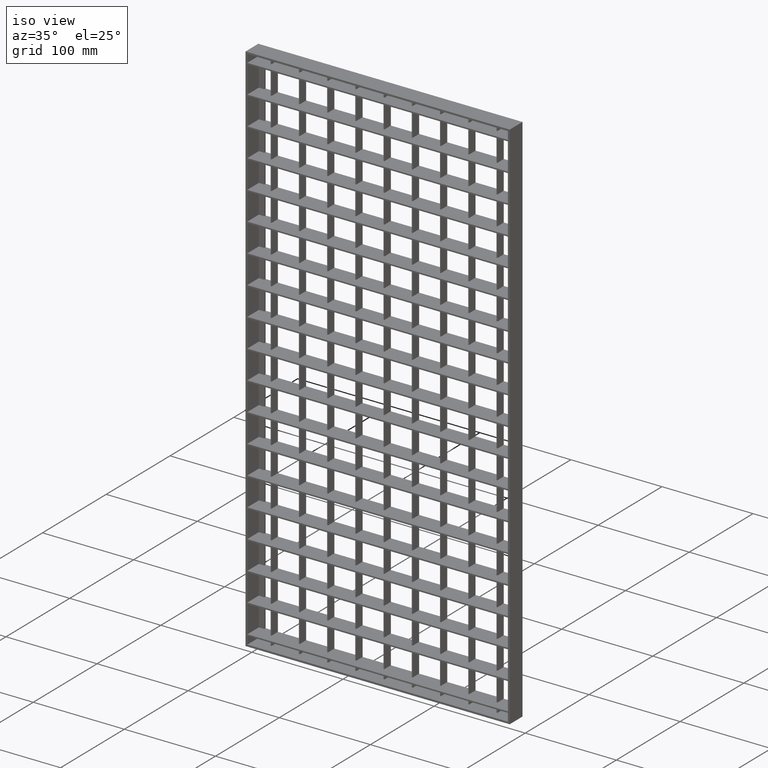
[diagram: clean part render]
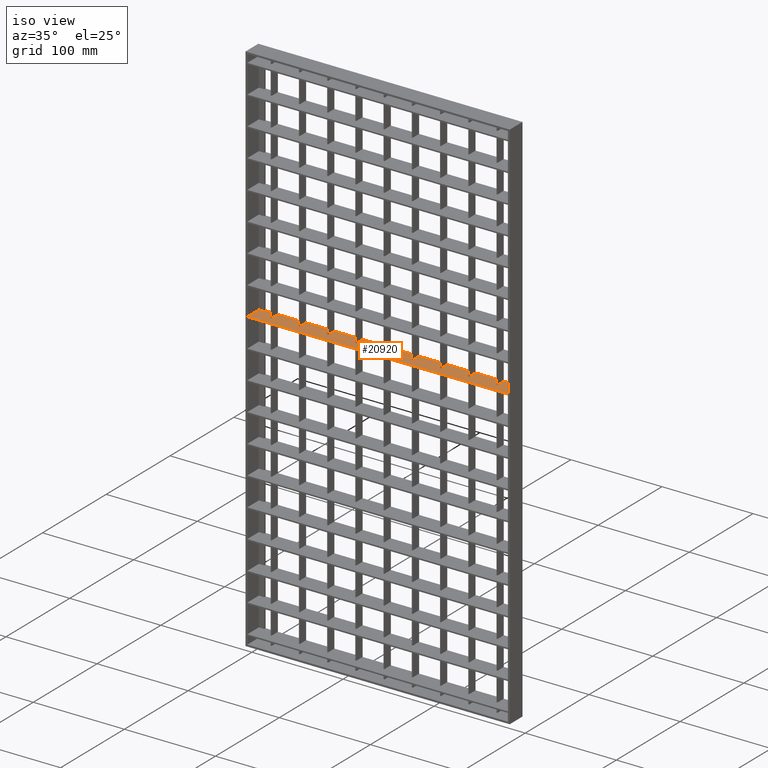
[diagram: same view with one face highlighted and labeled with its STEP entity id]
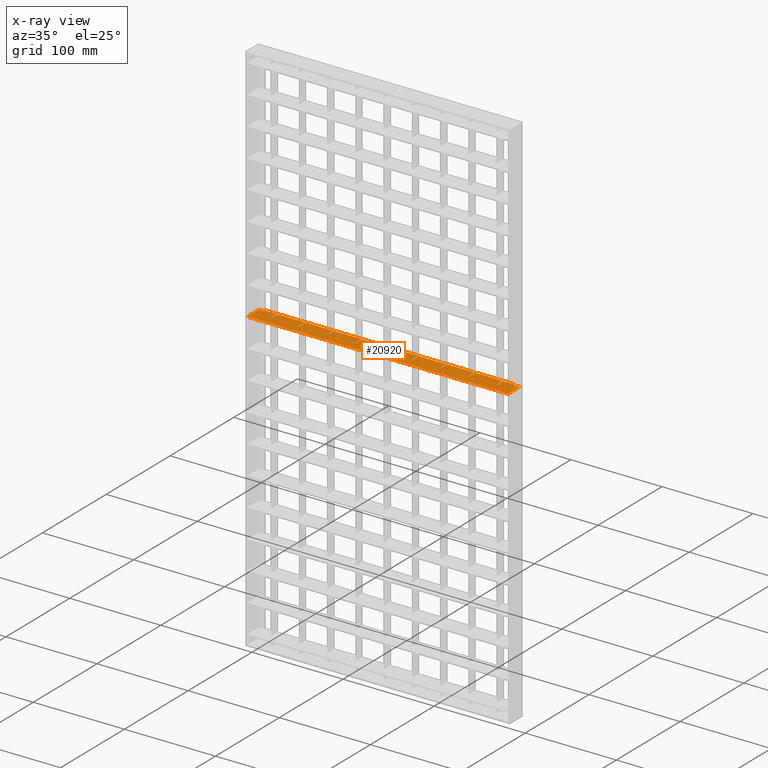
[diagram: x-ray of the same camera — body ghosted, the highlighted face saturated]
A machine part, iso view. The second image highlights one B-rep face of the part: STEP entity #20920.
The next image is the same camera in x-ray: the body ghosted, the highlighted face saturated — about 0% of this face is hidden behind the body in this view.
In plain terms, the highlighted planar face has unit normal (0, 0, 1).
Its self-contained STEP definition (entity closure, byte-faithful):
#3 = VECTOR ( 'NONE', #20310, 1000.000000000000000 ) ;
#11 = CARTESIAN_POINT ( 'NONE',  ( 206.5000000000000300, -9.999999999999909400, -262.7500000000004000 ) ) ;
#134 = VECTOR ( 'NONE', #21583, 1000.000000000000000 ) ;
#185 = ORIENTED_EDGE ( 'NONE', *, *, #16659, .T. ) ;
#205 = EDGE_CURVE ( 'NONE', #3500, #9063, #28267, .T. ) ;
#266 = ORIENTED_EDGE ( 'NONE', *, *, #7068, .F. ) ;
#300 = ORIENTED_EDGE ( 'NONE', *, *, #4792, .T. ) ;
#382 = LINE ( 'NONE', #27739, #6784 ) ;
#467 = CARTESIAN_POINT ( 'NONE',  ( 2.000000000000003600, -10.00000000000000000, -262.7500000000004000 ) ) ;
#660 = VERTEX_POINT ( 'NONE', #27572 ) ;
#764 = ORIENTED_EDGE ( 'NONE', *, *, #205, .T. ) ;
#765 = ORIENTED_EDGE ( 'NONE', *, *, #12243, .T. ) ;
#1031 = LINE ( 'NONE', #12845, #4950 ) ;
#1085 = VERTEX_POINT ( 'NONE', #1347 ) ;
#1090 = CARTESIAN_POINT ( 'NONE',  ( 268.5000000000000000, 10.00000000000007800, -262.7500000000004000 ) ) ;
#1166 = DIRECTION ( 'NONE',  ( -1.000000000000000000, -3.061616997868382200E-016, 0.0000000000000000000 ) ) ;
#1335 = VECTOR ( 'NONE', #9540, 1000.000000000000000 ) ;
#1347 = CARTESIAN_POINT ( 'NONE',  ( 269.5000000000000000, -5.233672318667803300E-016, -262.7500000000004000 ) ) ;
#1474 = DIRECTION ( 'NONE',  ( 0.0000000000000000000, 0.0000000000000000000, 1.000000000000000000 ) ) ;
#1506 = EDGE_CURVE ( 'NONE', #9063, #15653, #2196, .T. ) ;
#1533 = LINE ( 'NONE', #25478, #22831 ) ;
#1600 = CARTESIAN_POINT ( 'NONE',  ( 308.0561711201315800, 10.00000000000009100, -262.7500000000004000 ) ) ;
#1744 = VERTEX_POINT ( 'NONE', #26973 ) ;
#1786 = CARTESIAN_POINT ( 'NONE',  ( 21.50000000000001800, 0.0000000000000000000, -262.7500000000004000 ) ) ;
#1806 = DIRECTION ( 'NONE',  ( -1.000000000000000000, 0.0000000000000000000, 0.0000000000000000000 ) ) ;
#1882 = EDGE_CURVE ( 'NONE', #19405, #10059, #23100, .T. ) ;
#1959 = VECTOR ( 'NONE', #25393, 1000.000000000000000 ) ;
#2039 = VERTEX_POINT ( 'NONE', #1786 ) ;
#2169 = CARTESIAN_POINT ( 'NONE',  ( 113.5000000000000100, -5.850498709470072400E-016, -262.7500000000004000 ) ) ;
#2196 = LINE ( 'NONE', #12320, #22764 ) ;
#2375 = CARTESIAN_POINT ( 'NONE',  ( 308.0561711201315800, 10.00000000000009100, -262.7500000000004000 ) ) ;
#2454 = VERTEX_POINT ( 'NONE', #6557 ) ;
#2456 = DIRECTION ( 'NONE',  ( 1.000000000000000000, 3.061616997868382600E-016, -0.0000000000000000000 ) ) ;
#2486 = CARTESIAN_POINT ( 'NONE',  ( 82.50000000000001400, -9.999999999999909400, -262.7500000000004000 ) ) ;
#2585 = CARTESIAN_POINT ( 'NONE',  ( 51.50000000000002100, 10.00000000000000000, -262.7500000000004000 ) ) ;
#2618 = CARTESIAN_POINT ( 'NONE',  ( 144.5000000000000300, 10.00000000000000000, -262.7500000000004000 ) ) ;
#2631 = EDGE_CURVE ( 'NONE', #7913, #18687, #20197, .T. ) ;
#2634 = LINE ( 'NONE', #12354, #134 ) ;
#2645 = DIRECTION ( 'NONE',  ( 0.0000000000000000000, -1.000000000000000000, 0.0000000000000000000 ) ) ;
#2828 = EDGE_CURVE ( 'NONE', #20970, #22928, #8491, .T. ) ;
#2947 = VECTOR ( 'NONE', #25749, 1000.000000000000000 ) ;
#3159 = LINE ( 'NONE', #23712, #15908 ) ;
#3206 = DIRECTION ( 'NONE',  ( -0.0000000000000000000, 1.000000000000000000, 0.0000000000000000000 ) ) ;
#3442 = ORIENTED_EDGE ( 'NONE', *, *, #20036, .F. ) ;
#3476 = VECTOR ( 'NONE', #3206, 1000.000000000000000 ) ;
#3500 = VERTEX_POINT ( 'NONE', #6101 ) ;
#3633 = VERTEX_POINT ( 'NONE', #18134 ) ;
#3655 = CARTESIAN_POINT ( 'NONE',  ( 238.4999999999999700, -5.233672318667803300E-016, -262.7500000000004000 ) ) ;
#3841 = DIRECTION ( 'NONE',  ( -1.000000000000000000, -3.061616997868382200E-016, 0.0000000000000000000 ) ) ;
#3954 = DIRECTION ( 'NONE',  ( 1.000000000000000000, 0.0000000000000000000, -0.0000000000000000000 ) ) ;
#4051 = EDGE_CURVE ( 'NONE', #22928, #21735, #19025, .T. ) ;
#4070 = VECTOR ( 'NONE', #1806, 1000.000000000000000 ) ;
#4134 = EDGE_CURVE ( 'NONE', #10546, #26344, #5233, .T. ) ;
#4360 = LINE ( 'NONE', #5720, #28911 ) ;
#4428 = DIRECTION ( 'NONE',  ( -1.000000000000000000, -3.061616997868382200E-016, 0.0000000000000000000 ) ) ;
#4433 = ORIENTED_EDGE ( 'NONE', *, *, #19152, .T. ) ;
#4572 = DIRECTION ( 'NONE',  ( 0.0000000000000000000, -1.000000000000000000, 0.0000000000000000000 ) ) ;
#4577 = DIRECTION ( 'NONE',  ( -1.000000000000000000, -3.061616997868382200E-016, 0.0000000000000000000 ) ) ;
#4595 = ORIENTED_EDGE ( 'NONE', *, *, #13554, .T. ) ;
#4708 = ORIENTED_EDGE ( 'NONE', *, *, #1506, .T. ) ;
#4757 = VECTOR ( 'NONE', #29480, 1000.000000000000000 ) ;
#4792 = EDGE_CURVE ( 'NONE', #5663, #2454, #8407, .T. ) ;
#4840 = CARTESIAN_POINT ( 'NONE',  ( 114.5000000000000100, 10.00000000000003200, -262.7500000000004000 ) ) ;
#4886 = LINE ( 'NONE', #10302, #15498 ) ;
#4950 = VECTOR ( 'NONE', #3841, 1000.000000000000000 ) ;
#4951 = LINE ( 'NONE', #11710, #17723 ) ;
#5021 = FACE_OUTER_BOUND ( 'NONE', #13433, .T. ) ;
#5055 = DIRECTION ( 'NONE',  ( -1.000000000000000000, 3.061616997868382600E-016, 0.0000000000000000000 ) ) ;
#5088 = ORIENTED_EDGE ( 'NONE', *, *, #27888, .T. ) ;
#5233 = LINE ( 'NONE', #8118, #22617 ) ;
#5241 = LINE ( 'NONE', #24822, #14373 ) ;
#5285 = VECTOR ( 'NONE', #10595, 1000.000000000000000 ) ;
#5350 = CARTESIAN_POINT ( 'NONE',  ( 7.999999999999996400, 8.000000000000001800, -262.7500000000004000 ) ) ;
#5422 = LINE ( 'NONE', #8162, #24251 ) ;
#5483 = LINE ( 'NONE', #27073, #28976 ) ;
#5663 = VERTEX_POINT ( 'NONE', #7638 ) ;
#5720 = CARTESIAN_POINT ( 'NONE',  ( 308.0561711201315800, 7.806255641895631900E-014, -262.7500000000004000 ) ) ;
#5808 = VERTEX_POINT ( 'NONE', #24193 ) ;
#5815 = DIRECTION ( 'NONE',  ( 1.000000000000000000, 3.061616997868382600E-016, -0.0000000000000000000 ) ) ;
#5859 = CARTESIAN_POINT ( 'NONE',  ( 51.50000000000004300, -9.999999999999909400, -262.7500000000004000 ) ) ;
#5876 = VERTEX_POINT ( 'NONE', #8520 ) ;
#5938 = CARTESIAN_POINT ( 'NONE',  ( 20.50000000000001800, 10.00000000000000000, -262.7500000000004000 ) ) ;
#5975 = CARTESIAN_POINT ( 'NONE',  ( 282.0000000000000000, 8.000000000000001800, -262.7500000000004000 ) ) ;
#6101 = CARTESIAN_POINT ( 'NONE',  ( 288.0000000000001100, 8.000000000000001800, -262.7500000000004000 ) ) ;
#6115 = DIRECTION ( 'NONE',  ( -0.0000000000000000000, 1.000000000000000000, 0.0000000000000000000 ) ) ;
#6163 = ORIENTED_EDGE ( 'NONE', *, *, #22767, .F. ) ;
#6275 = VERTEX_POINT ( 'NONE', #8261 ) ;
#6337 = CARTESIAN_POINT ( 'NONE',  ( 145.5000000000000300, -9.999999999999909400, -262.7500000000004000 ) ) ;
#6403 = LINE ( 'NONE', #8736, #26346 ) ;
#6518 = ORIENTED_EDGE ( 'NONE', *, *, #18720, .F. ) ;
#6557 = CARTESIAN_POINT ( 'NONE',  ( 176.5000000000000300, -5.233672318667803300E-016, -262.7500000000004000 ) ) ;
#6784 = VECTOR ( 'NONE', #5055, 1000.000000000000000 ) ;
#6990 = CARTESIAN_POINT ( 'NONE',  ( 237.5000000000000000, 10.00000000000006900, -262.7500000000004000 ) ) ;
#6997 = DIRECTION ( 'NONE',  ( -0.0000000000000000000, 1.000000000000000000, 0.0000000000000000000 ) ) ;
#7068 = EDGE_CURVE ( 'NONE', #5808, #24585, #6403, .T. ) ;
#7160 = VECTOR ( 'NONE', #23928, 1000.000000000000000 ) ;
#7205 = VERTEX_POINT ( 'NONE', #7689 ) ;
#7322 = ORIENTED_EDGE ( 'NONE', *, *, #8909, .T. ) ;
#7376 = VECTOR ( 'NONE', #6115, 1000.000000000000000 ) ;
#7630 = ORIENTED_EDGE ( 'NONE', *, *, #21072, .T. ) ;
#7638 = CARTESIAN_POINT ( 'NONE',  ( 176.5000000000000300, 10.00000000000000000, -262.7500000000004000 ) ) ;
#7689 = CARTESIAN_POINT ( 'NONE',  ( 206.5000000000000000, -2.172055320799417500E-016, -262.7500000000004000 ) ) ;
#7729 = CARTESIAN_POINT ( 'NONE',  ( 83.50000000000001400, 10.00000000000002100, -262.7500000000004000 ) ) ;
#7759 = EDGE_CURVE ( 'NONE', #12573, #12125, #3159, .T. ) ;
#7913 = VERTEX_POINT ( 'NONE', #8942 ) ;
#7948 = ORIENTED_EDGE ( 'NONE', *, *, #21433, .T. ) ;
#8074 = ORIENTED_EDGE ( 'NONE', *, *, #21850, .T. ) ;
#8118 = CARTESIAN_POINT ( 'NONE',  ( 20.50000000000001800, -9.999999999999909400, -262.7500000000004000 ) ) ;
#8162 = CARTESIAN_POINT ( 'NONE',  ( 175.5000000000000300, -9.999999999999909400, -262.7500000000004000 ) ) ;
#8261 = CARTESIAN_POINT ( 'NONE',  ( 83.50000000000001400, 0.0000000000000000000, -262.7500000000004000 ) ) ;
#8407 = LINE ( 'NONE', #26971, #21492 ) ;
#8438 = LINE ( 'NONE', #13865, #29448 ) ;
#8491 = LINE ( 'NONE', #28727, #5285 ) ;
#8520 = CARTESIAN_POINT ( 'NONE',  ( 206.5000000000000300, 10.00000000000005900, -262.7500000000004000 ) ) ;
#8731 = CARTESIAN_POINT ( 'NONE',  ( 308.0561711201315800, 6.938893903907228400E-014, -262.7500000000004000 ) ) ;
#8736 = CARTESIAN_POINT ( 'NONE',  ( 308.0561711201315800, 5.030698080332740600E-014, -262.7500000000004000 ) ) ;
#8790 = LINE ( 'NONE', #13730, #15812 ) ;
#8909 = EDGE_CURVE ( 'NONE', #19405, #29468, #20849, .T. ) ;
#8942 = CARTESIAN_POINT ( 'NONE',  ( 7.999999999999996400, 10.00000000000000200, -262.7500000000004000 ) ) ;
#9018 = LINE ( 'NONE', #8731, #26777 ) ;
#9063 = VERTEX_POINT ( 'NONE', #5975 ) ;
#9201 = ORIENTED_EDGE ( 'NONE', *, *, #2631, .T. ) ;
#9367 = VERTEX_POINT ( 'NONE', #18068 ) ;
#9432 = CARTESIAN_POINT ( 'NONE',  ( 2.000000000000001800, -10.00000000000000400, -262.7500000000004000 ) ) ;
#9471 = LINE ( 'NONE', #26409, #20091 ) ;
#9525 = VECTOR ( 'NONE', #16843, 1000.000000000000000 ) ;
#9540 = DIRECTION ( 'NONE',  ( 0.0000000000000000000, -1.000000000000000000, 0.0000000000000000000 ) ) ;
#9541 = EDGE_CURVE ( 'NONE', #24105, #21955, #9471, .T. ) ;
#9878 = CARTESIAN_POINT ( 'NONE',  ( 308.0561711201315800, 10.00000000000009100, -262.7500000000004000 ) ) ;
#10019 = DIRECTION ( 'NONE',  ( -0.0000000000000000000, -1.000000000000000000, 0.0000000000000000000 ) ) ;
#10059 = VERTEX_POINT ( 'NONE', #28283 ) ;
#10103 = ORIENTED_EDGE ( 'NONE', *, *, #19341, .T. ) ;
#10302 = CARTESIAN_POINT ( 'NONE',  ( 308.0561711201315800, 10.00000000000009100, -262.7500000000004000 ) ) ;
#10415 = LINE ( 'NONE', #9878, #2947 ) ;
#10546 = VERTEX_POINT ( 'NONE', #5938 ) ;
#10595 = DIRECTION ( 'NONE',  ( 1.000000000000000000, 3.061616997868382600E-016, -0.0000000000000000000 ) ) ;
#10676 = EDGE_CURVE ( 'NONE', #20315, #7205, #28490, .T. ) ;
#10791 = LINE ( 'NONE', #11, #4757 ) ;
#10966 = ORIENTED_EDGE ( 'NONE', *, *, #24272, .T. ) ;
#10997 = PLANE ( 'NONE',  #16252 ) ;
#11051 = ORIENTED_EDGE ( 'NONE', *, *, #24830, .F. ) ;
#11314 = VECTOR ( 'NONE', #4428, 1000.000000000000000 ) ;
#11488 = DIRECTION ( 'NONE',  ( 0.0000000000000000000, -1.000000000000000000, 0.0000000000000000000 ) ) ;
#11614 = LINE ( 'NONE', #23619, #9525 ) ;
#11659 = LINE ( 'NONE', #15899, #11314 ) ;
#11710 = CARTESIAN_POINT ( 'NONE',  ( 308.0561711201315800, -2.081668171172168500E-014, -262.7500000000004000 ) ) ;
#12095 = CARTESIAN_POINT ( 'NONE',  ( 282.0000000000000000, 10.00000000000000200, -262.7500000000004000 ) ) ;
#12125 = VERTEX_POINT ( 'NONE', #9432 ) ;
#12243 = EDGE_CURVE ( 'NONE', #10546, #7913, #4886, .T. ) ;
#12320 = CARTESIAN_POINT ( 'NONE',  ( 282.0000000000000000, 8.000000000000001800, -262.7500000000004000 ) ) ;
#12354 = CARTESIAN_POINT ( 'NONE',  ( 238.5000000000000000, -9.999999999999909400, -262.7500000000004000 ) ) ;
#12573 = VERTEX_POINT ( 'NONE', #27833 ) ;
#12581 = LINE ( 'NONE', #21736, #24330 ) ;
#12630 = VECTOR ( 'NONE', #28665, 1000.000000000000000 ) ;
#12793 = ORIENTED_EDGE ( 'NONE', *, *, #20071, .T. ) ;
#12845 = CARTESIAN_POINT ( 'NONE',  ( 308.0561711201315800, 10.00000000000009100, -262.7500000000004000 ) ) ;
#12917 = CARTESIAN_POINT ( 'NONE',  ( 21.50000000000001800, -9.999999999999909400, -262.7500000000004000 ) ) ;
#13176 = LINE ( 'NONE', #20885, #16733 ) ;
#13433 = EDGE_LOOP ( 'NONE', ( #17312, #8074, #12793, #7630, #25330, #16083, #5088, #4433, #185, #10966, #15429, #21003, #27299, #300, #20844, #7948, #15175, #6163, #266, #24883, #4595, #21737, #15298, #26210, #27524, #16290, #3442, #25579, #27401, #18205, #29083, #22202, #7322, #6518, #23515, #20352, #765, #9201, #10103, #27688, #26323, #11051, #764, #4708 ) ) ;
#13554 = EDGE_CURVE ( 'NONE', #27973, #21735, #23235, .T. ) ;
#13730 = CARTESIAN_POINT ( 'NONE',  ( 268.5000000000000000, -9.999999999999909400, -262.7500000000004000 ) ) ;
#13833 = EDGE_CURVE ( 'NONE', #660, #16430, #2634, .T. ) ;
#13865 = CARTESIAN_POINT ( 'NONE',  ( 308.0561711201315800, 10.00000000000009100, -262.7500000000004000 ) ) ;
#14174 = CARTESIAN_POINT ( 'NONE',  ( 82.50000000000001400, 3.322782915218505000E-016, -262.7500000000004000 ) ) ;
#14188 = VECTOR ( 'NONE', #22272, 1000.000000000000000 ) ;
#14250 = VERTEX_POINT ( 'NONE', #27804 ) ;
#14332 = EDGE_CURVE ( 'NONE', #15765, #26730, #10415, .T. ) ;
#14373 = VECTOR ( 'NONE', #11488, 1000.000000000000000 ) ;
#14818 = CARTESIAN_POINT ( 'NONE',  ( 52.50000000000005000, -9.999999999999909400, -262.7500000000004000 ) ) ;
#14855 = CARTESIAN_POINT ( 'NONE',  ( 175.5000000000000300, 10.00000000000005000, -262.7500000000004000 ) ) ;
#14937 = CARTESIAN_POINT ( 'NONE',  ( 2.000000000000003600, 8.000000000000001800, -262.7500000000004000 ) ) ;
#15175 = ORIENTED_EDGE ( 'NONE', *, *, #14332, .T. ) ;
#15298 = ORIENTED_EDGE ( 'NONE', *, *, #2828, .F. ) ;
#15363 = CARTESIAN_POINT ( 'NONE',  ( 2.000000000000003600, 8.000000000000001800, -262.7500000000004000 ) ) ;
#15429 = ORIENTED_EDGE ( 'NONE', *, *, #10676, .T. ) ;
#15498 = VECTOR ( 'NONE', #1166, 1000.000000000000000 ) ;
#15522 = VECTOR ( 'NONE', #28270, 1000.000000000000000 ) ;
#15570 = VECTOR ( 'NONE', #10019, 1000.000000000000000 ) ;
#15626 = VERTEX_POINT ( 'NONE', #14174 ) ;
#15653 = VERTEX_POINT ( 'NONE', #12095 ) ;
#15765 = VERTEX_POINT ( 'NONE', #14855 ) ;
#15812 = VECTOR ( 'NONE', #24692, 1000.000000000000000 ) ;
#15851 = VECTOR ( 'NONE', #2645, 1000.000000000000000 ) ;
#15859 = LINE ( 'NONE', #2486, #1335 ) ;
#15899 = CARTESIAN_POINT ( 'NONE',  ( 308.0561711201315800, 10.00000000000009100, -262.7500000000004000 ) ) ;
#15908 = VECTOR ( 'NONE', #28337, 1000.000000000000000 ) ;
#16083 = ORIENTED_EDGE ( 'NONE', *, *, #13833, .T. ) ;
#16197 = CARTESIAN_POINT ( 'NONE',  ( 288.0000000000000000, -9.999999999999909400, -262.7500000000004000 ) ) ;
#16252 = AXIS2_PLACEMENT_3D ( 'NONE', #29242, #1474, #3954 ) ;
#16278 = VECTOR ( 'NONE', #17327, 1000.000000000000000 ) ;
#16290 = ORIENTED_EDGE ( 'NONE', *, *, #17516, .F. ) ;
#16430 = VERTEX_POINT ( 'NONE', #3655 ) ;
#16504 = VECTOR ( 'NONE', #22813, 1000.000000000000000 ) ;
#16509 = DIRECTION ( 'NONE',  ( 0.0000000000000000000, -1.000000000000000000, 0.0000000000000000000 ) ) ;
#16514 = EDGE_CURVE ( 'NONE', #1744, #14250, #20887, .T. ) ;
#16555 = EDGE_CURVE ( 'NONE', #24297, #660, #1031, .T. ) ;
#16616 = CARTESIAN_POINT ( 'NONE',  ( 114.5000000000000100, 0.0000000000000000000, -262.7500000000004000 ) ) ;
#16629 = DIRECTION ( 'NONE',  ( -1.000000000000000000, 0.0000000000000000000, 0.0000000000000000000 ) ) ;
#16659 = EDGE_CURVE ( 'NONE', #29033, #16776, #11659, .T. ) ;
#16733 = VECTOR ( 'NONE', #16509, 1000.000000000000000 ) ;
#16776 = VERTEX_POINT ( 'NONE', #16800 ) ;
#16800 = CARTESIAN_POINT ( 'NONE',  ( 207.5000000000000000, 10.00000000000000000, -262.7500000000004000 ) ) ;
#16843 = DIRECTION ( 'NONE',  ( 0.0000000000000000000, -1.000000000000000000, 0.0000000000000000000 ) ) ;
#17074 = VERTEX_POINT ( 'NONE', #29204 ) ;
#17115 = CARTESIAN_POINT ( 'NONE',  ( 145.5000000000000300, 0.0000000000000000000, -262.7500000000004000 ) ) ;
#17312 = ORIENTED_EDGE ( 'NONE', *, *, #17621, .T. ) ;
#17327 = DIRECTION ( 'NONE',  ( -0.0000000000000000000, 1.000000000000000000, 0.0000000000000000000 ) ) ;
#17516 = EDGE_CURVE ( 'NONE', #6275, #21955, #21546, .T. ) ;
#17611 = LINE ( 'NONE', #467, #16504 ) ;
#17621 = EDGE_CURVE ( 'NONE', #15653, #3633, #18681, .T. ) ;
#17723 = VECTOR ( 'NONE', #27879, 1000.000000000000000 ) ;
#17775 = CARTESIAN_POINT ( 'NONE',  ( 21.50000000000007500, 10.00000000000000200, -262.7500000000004000 ) ) ;
#17876 = EDGE_CURVE ( 'NONE', #27973, #5808, #20106, .T. ) ;
#17890 = EDGE_CURVE ( 'NONE', #24105, #20970, #5241, .T. ) ;
#18068 = CARTESIAN_POINT ( 'NONE',  ( 175.5000000000000300, -2.172055320799417500E-016, -262.7500000000004000 ) ) ;
#18134 = CARTESIAN_POINT ( 'NONE',  ( 269.5000000000000000, 10.00000000000000000, -262.7500000000004000 ) ) ;
#18205 = ORIENTED_EDGE ( 'NONE', *, *, #16514, .F. ) ;
#18681 = LINE ( 'NONE', #1600, #12630 ) ;
#18687 = VERTEX_POINT ( 'NONE', #22167 ) ;
#18706 = DIRECTION ( 'NONE',  ( -1.000000000000000000, 3.061616997868382600E-016, 0.0000000000000000000 ) ) ;
#18720 = EDGE_CURVE ( 'NONE', #2039, #29468, #28678, .T. ) ;
#19025 = LINE ( 'NONE', #19502, #7376 ) ;
#19152 = EDGE_CURVE ( 'NONE', #26511, #29033, #12581, .T. ) ;
#19332 = LINE ( 'NONE', #15363, #4070 ) ;
#19341 = EDGE_CURVE ( 'NONE', #18687, #22593, #19332, .T. ) ;
#19405 = VERTEX_POINT ( 'NONE', #2585 ) ;
#19462 = DIRECTION ( 'NONE',  ( -0.0000000000000000000, 1.000000000000000000, 0.0000000000000000000 ) ) ;
#19502 = CARTESIAN_POINT ( 'NONE',  ( 114.5000000000000100, -9.999999999999909400, -262.7500000000004000 ) ) ;
#20036 = EDGE_CURVE ( 'NONE', #15626, #6275, #9018, .T. ) ;
#20071 = EDGE_CURVE ( 'NONE', #1085, #24062, #1533, .T. ) ;
#20091 = VECTOR ( 'NONE', #22097, 1000.000000000000000 ) ;
#20106 = LINE ( 'NONE', #25012, #24746 ) ;
#20197 = LINE ( 'NONE', #5350, #15570 ) ;
#20264 = EDGE_CURVE ( 'NONE', #10059, #1744, #4360, .T. ) ;
#20310 = DIRECTION ( 'NONE',  ( -0.0000000000000000000, 1.000000000000000000, 0.0000000000000000000 ) ) ;
#20315 = VERTEX_POINT ( 'NONE', #23974 ) ;
#20352 = ORIENTED_EDGE ( 'NONE', *, *, #4134, .F. ) ;
#20394 = DIRECTION ( 'NONE',  ( 1.000000000000000000, 3.061616997868382600E-016, -0.0000000000000000000 ) ) ;
#20844 = ORIENTED_EDGE ( 'NONE', *, *, #22949, .T. ) ;
#20849 = LINE ( 'NONE', #21340, #15522 ) ;
#20885 = CARTESIAN_POINT ( 'NONE',  ( 269.5000000000000000, -9.999999999999909400, -262.7500000000004000 ) ) ;
#20887 = LINE ( 'NONE', #14818, #16278 ) ;
#20920 = ADVANCED_FACE ( 'NONE', ( #5021 ), #10997, .T. ) ;
#20970 = VERTEX_POINT ( 'NONE', #2169 ) ;
#21003 = ORIENTED_EDGE ( 'NONE', *, *, #26463, .T. ) ;
#21072 = EDGE_CURVE ( 'NONE', #24062, #24297, #8790, .T. ) ;
#21340 = CARTESIAN_POINT ( 'NONE',  ( 308.0561711201315800, 10.00000000000009100, -262.7500000000004000 ) ) ;
#21358 = DIRECTION ( 'NONE',  ( 0.0000000000000000000, 1.000000000000000000, -0.0000000000000000000 ) ) ;
#21433 = EDGE_CURVE ( 'NONE', #9367, #15765, #5422, .T. ) ;
#21492 = VECTOR ( 'NONE', #24841, 1000.000000000000000 ) ;
#21546 = LINE ( 'NONE', #26045, #3476 ) ;
#21583 = DIRECTION ( 'NONE',  ( 0.0000000000000000000, -1.000000000000000000, 0.0000000000000000000 ) ) ;
#21735 = VERTEX_POINT ( 'NONE', #4840 ) ;
#21736 = CARTESIAN_POINT ( 'NONE',  ( 237.5000000000000000, -9.999999999999909400, -262.7500000000004000 ) ) ;
#21737 = ORIENTED_EDGE ( 'NONE', *, *, #4051, .F. ) ;
#21850 = EDGE_CURVE ( 'NONE', #3633, #1085, #13176, .T. ) ;
#21955 = VERTEX_POINT ( 'NONE', #7729 ) ;
#22097 = DIRECTION ( 'NONE',  ( -1.000000000000000000, -3.061616997868382200E-016, 0.0000000000000000000 ) ) ;
#22167 = CARTESIAN_POINT ( 'NONE',  ( 7.999999999999996400, 8.000000000000001800, -262.7500000000004000 ) ) ;
#22202 = ORIENTED_EDGE ( 'NONE', *, *, #1882, .F. ) ;
#22272 = DIRECTION ( 'NONE',  ( 1.000000000000000000, 3.061616997868382600E-016, -0.0000000000000000000 ) ) ;
#22296 = EDGE_CURVE ( 'NONE', #26344, #2039, #25253, .T. ) ;
#22507 = VECTOR ( 'NONE', #16629, 1000.000000000000000 ) ;
#22593 = VERTEX_POINT ( 'NONE', #14937 ) ;
#22617 = VECTOR ( 'NONE', #23981, 1000.000000000000000 ) ;
#22764 = VECTOR ( 'NONE', #21358, 1000.000000000000000 ) ;
#22767 = EDGE_CURVE ( 'NONE', #24585, #26730, #28127, .T. ) ;
#22813 = DIRECTION ( 'NONE',  ( -0.0000000000000000000, -1.000000000000000000, 0.0000000000000000000 ) ) ;
#22831 = VECTOR ( 'NONE', #18706, 1000.000000000000000 ) ;
#22928 = VERTEX_POINT ( 'NONE', #16616 ) ;
#22949 = EDGE_CURVE ( 'NONE', #2454, #9367, #382, .T. ) ;
#23100 = LINE ( 'NONE', #5859, #7160 ) ;
#23235 = LINE ( 'NONE', #2375, #1959 ) ;
#23515 = ORIENTED_EDGE ( 'NONE', *, *, #22296, .F. ) ;
#23619 = CARTESIAN_POINT ( 'NONE',  ( 207.5000000000000300, -9.999999999999909400, -262.7500000000004000 ) ) ;
#23712 = CARTESIAN_POINT ( 'NONE',  ( 308.0561711201315800, -9.999999999999909400, -262.7500000000004000 ) ) ;
#23924 = DIRECTION ( 'NONE',  ( -0.0000000000000000000, 1.000000000000000000, 0.0000000000000000000 ) ) ;
#23928 = DIRECTION ( 'NONE',  ( 0.0000000000000000000, -1.000000000000000000, 0.0000000000000000000 ) ) ;
#23974 = CARTESIAN_POINT ( 'NONE',  ( 207.5000000000000000, -5.233672318667803300E-016, -262.7500000000004000 ) ) ;
#23981 = DIRECTION ( 'NONE',  ( 0.0000000000000000000, -1.000000000000000000, 0.0000000000000000000 ) ) ;
#24062 = VERTEX_POINT ( 'NONE', #27469 ) ;
#24105 = VERTEX_POINT ( 'NONE', #25517 ) ;
#24193 = CARTESIAN_POINT ( 'NONE',  ( 144.5000000000000300, 2.323454425609482800E-016, -262.7500000000004000 ) ) ;
#24251 = VECTOR ( 'NONE', #23924, 1000.000000000000000 ) ;
#24272 = EDGE_CURVE ( 'NONE', #16776, #20315, #11614, .T. ) ;
#24297 = VERTEX_POINT ( 'NONE', #1090 ) ;
#24330 = VECTOR ( 'NONE', #19462, 1000.000000000000000 ) ;
#24585 = VERTEX_POINT ( 'NONE', #17115 ) ;
#24648 = CARTESIAN_POINT ( 'NONE',  ( 20.49999999999996400, 4.322111404827342300E-016, -262.7500000000004000 ) ) ;
#24692 = DIRECTION ( 'NONE',  ( -0.0000000000000000000, 1.000000000000000000, 0.0000000000000000000 ) ) ;
#24746 = VECTOR ( 'NONE', #4572, 1000.000000000000000 ) ;
#24747 = DIRECTION ( 'NONE',  ( -1.000000000000000000, -3.061616997868382200E-016, 0.0000000000000000000 ) ) ;
#24822 = CARTESIAN_POINT ( 'NONE',  ( 113.5000000000000100, -9.999999999999909400, -262.7500000000004000 ) ) ;
#24830 = EDGE_CURVE ( 'NONE', #3500, #12573, #25484, .T. ) ;
#24841 = DIRECTION ( 'NONE',  ( 0.0000000000000000000, -1.000000000000000000, 0.0000000000000000000 ) ) ;
#24863 = CARTESIAN_POINT ( 'NONE',  ( 308.0561711201315800, 8.847089727481716200E-014, -262.7500000000004000 ) ) ;
#24883 = ORIENTED_EDGE ( 'NONE', *, *, #17876, .F. ) ;
#24938 = CARTESIAN_POINT ( 'NONE',  ( 237.4999999999999700, -2.172055320799417500E-016, -262.7500000000004000 ) ) ;
#24979 = CARTESIAN_POINT ( 'NONE',  ( 308.0561711201315800, -3.122502256758252800E-014, -262.7500000000004000 ) ) ;
#25012 = CARTESIAN_POINT ( 'NONE',  ( 144.5000000000000300, -9.999999999999909400, -262.7500000000004000 ) ) ;
#25253 = LINE ( 'NONE', #24863, #14188 ) ;
#25330 = ORIENTED_EDGE ( 'NONE', *, *, #16555, .T. ) ;
#25336 = EDGE_CURVE ( 'NONE', #22593, #12125, #17611, .T. ) ;
#25393 = DIRECTION ( 'NONE',  ( -1.000000000000000000, -3.061616997868382200E-016, 0.0000000000000000000 ) ) ;
#25478 = CARTESIAN_POINT ( 'NONE',  ( 308.0561711201315800, -1.214306433183765000E-014, -262.7500000000004000 ) ) ;
#25484 = LINE ( 'NONE', #16197, #15851 ) ;
#25517 = CARTESIAN_POINT ( 'NONE',  ( 113.5000000000000100, 10.00000000000000000, -262.7500000000004000 ) ) ;
#25579 = ORIENTED_EDGE ( 'NONE', *, *, #28523, .F. ) ;
#25749 = DIRECTION ( 'NONE',  ( -1.000000000000000000, -3.061616997868382200E-016, 0.0000000000000000000 ) ) ;
#25945 = VECTOR ( 'NONE', #29420, 1000.000000000000000 ) ;
#26045 = CARTESIAN_POINT ( 'NONE',  ( 83.50000000000001400, -9.999999999999909400, -262.7500000000004000 ) ) ;
#26210 = ORIENTED_EDGE ( 'NONE', *, *, #17890, .F. ) ;
#26230 = CARTESIAN_POINT ( 'NONE',  ( 145.5000000000000300, 10.00000000000004100, -262.7500000000004000 ) ) ;
#26315 = EDGE_CURVE ( 'NONE', #17074, #14250, #5483, .T. ) ;
#26323 = ORIENTED_EDGE ( 'NONE', *, *, #7759, .F. ) ;
#26344 = VERTEX_POINT ( 'NONE', #24648 ) ;
#26346 = VECTOR ( 'NONE', #20394, 1000.000000000000000 ) ;
#26409 = CARTESIAN_POINT ( 'NONE',  ( 308.0561711201315800, 10.00000000000009100, -262.7500000000004000 ) ) ;
#26463 = EDGE_CURVE ( 'NONE', #7205, #5876, #10791, .T. ) ;
#26511 = VERTEX_POINT ( 'NONE', #24938 ) ;
#26730 = VERTEX_POINT ( 'NONE', #26230 ) ;
#26777 = VECTOR ( 'NONE', #2456, 1000.000000000000000 ) ;
#26971 = CARTESIAN_POINT ( 'NONE',  ( 176.5000000000000300, -9.999999999999909400, -262.7500000000004000 ) ) ;
#26973 = CARTESIAN_POINT ( 'NONE',  ( 52.50000000000005000, 0.0000000000000000000, -262.7500000000004000 ) ) ;
#27073 = CARTESIAN_POINT ( 'NONE',  ( 308.0561711201315800, 10.00000000000009100, -262.7500000000004000 ) ) ;
#27299 = ORIENTED_EDGE ( 'NONE', *, *, #29511, .T. ) ;
#27401 = ORIENTED_EDGE ( 'NONE', *, *, #26315, .T. ) ;
#27469 = CARTESIAN_POINT ( 'NONE',  ( 268.5000000000000000, -2.172055320799417500E-016, -262.7500000000004000 ) ) ;
#27524 = ORIENTED_EDGE ( 'NONE', *, *, #9541, .T. ) ;
#27572 = CARTESIAN_POINT ( 'NONE',  ( 238.4999999999999700, 10.00000000000000000, -262.7500000000004000 ) ) ;
#27688 = ORIENTED_EDGE ( 'NONE', *, *, #25336, .T. ) ;
#27739 = CARTESIAN_POINT ( 'NONE',  ( 308.0561711201315800, -3.989863994746656300E-014, -262.7500000000004000 ) ) ;
#27804 = CARTESIAN_POINT ( 'NONE',  ( 52.50000000000005000, 10.00000000000001200, -262.7500000000004000 ) ) ;
#27833 = CARTESIAN_POINT ( 'NONE',  ( 288.0000000000000000, -10.00000000000000400, -262.7500000000004000 ) ) ;
#27879 = DIRECTION ( 'NONE',  ( -1.000000000000000000, 3.061616997868382600E-016, 0.0000000000000000000 ) ) ;
#27888 = EDGE_CURVE ( 'NONE', #16430, #26511, #4951, .T. ) ;
#27973 = VERTEX_POINT ( 'NONE', #2618 ) ;
#28127 = LINE ( 'NONE', #6337, #3 ) ;
#28132 = CARTESIAN_POINT ( 'NONE',  ( 145.0000000000000000, 8.000000000000001800, -262.7500000000004000 ) ) ;
#28267 = LINE ( 'NONE', #28132, #22507 ) ;
#28270 = DIRECTION ( 'NONE',  ( -1.000000000000000000, -3.061616997868382200E-016, 0.0000000000000000000 ) ) ;
#28283 = CARTESIAN_POINT ( 'NONE',  ( 51.49999999999999300, -4.851170219861111800E-016, -262.7500000000004000 ) ) ;
#28337 = DIRECTION ( 'NONE',  ( -1.000000000000000000, -3.061616997868382200E-016, 0.0000000000000000000 ) ) ;
#28490 = LINE ( 'NONE', #24979, #25945 ) ;
#28523 = EDGE_CURVE ( 'NONE', #17074, #15626, #15859, .T. ) ;
#28665 = DIRECTION ( 'NONE',  ( -1.000000000000000000, -3.061616997868382200E-016, 0.0000000000000000000 ) ) ;
#28678 = LINE ( 'NONE', #12917, #29403 ) ;
#28727 = CARTESIAN_POINT ( 'NONE',  ( 308.0561711201315800, 5.898059818321144100E-014, -262.7500000000004000 ) ) ;
#28911 = VECTOR ( 'NONE', #5815, 1000.000000000000000 ) ;
#28976 = VECTOR ( 'NONE', #24747, 1000.000000000000000 ) ;
#29033 = VERTEX_POINT ( 'NONE', #6990 ) ;
#29083 = ORIENTED_EDGE ( 'NONE', *, *, #20264, .F. ) ;
#29204 = CARTESIAN_POINT ( 'NONE',  ( 82.50000000000001400, 10.00000000000000000, -262.7500000000004000 ) ) ;
#29242 = CARTESIAN_POINT ( 'NONE',  ( 308.0561711201315800, -9.999999999999909400, -262.7500000000004000 ) ) ;
#29403 = VECTOR ( 'NONE', #6997, 1000.000000000000000 ) ;
#29420 = DIRECTION ( 'NONE',  ( -1.000000000000000000, 3.061616997868382600E-016, 0.0000000000000000000 ) ) ;
#29448 = VECTOR ( 'NONE', #4577, 1000.000000000000000 ) ;
#29468 = VERTEX_POINT ( 'NONE', #17775 ) ;
#29480 = DIRECTION ( 'NONE',  ( -0.0000000000000000000, 1.000000000000000000, 0.0000000000000000000 ) ) ;
#29511 = EDGE_CURVE ( 'NONE', #5876, #5663, #8438, .T. ) ;